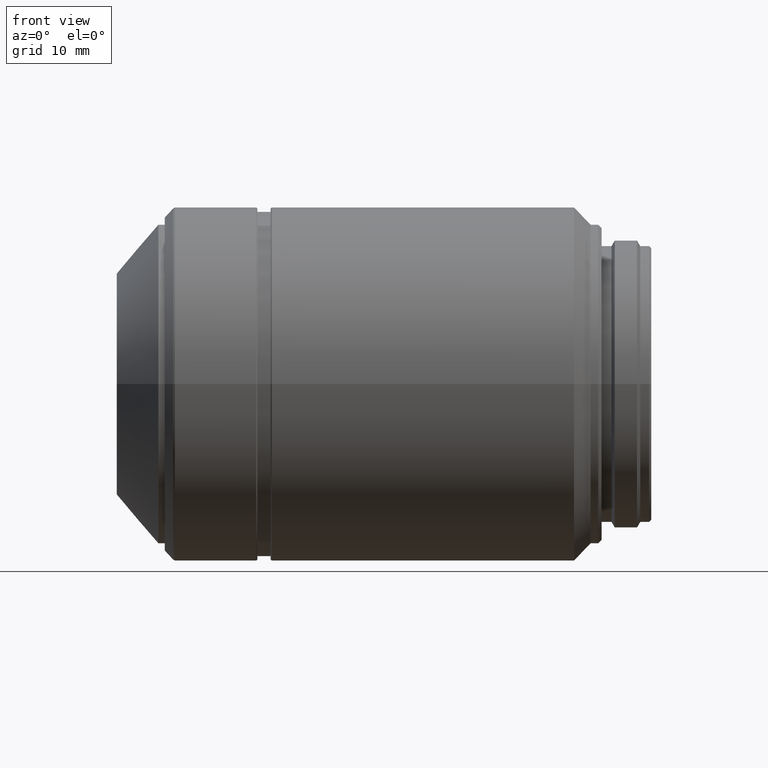
[diagram: clean part render]
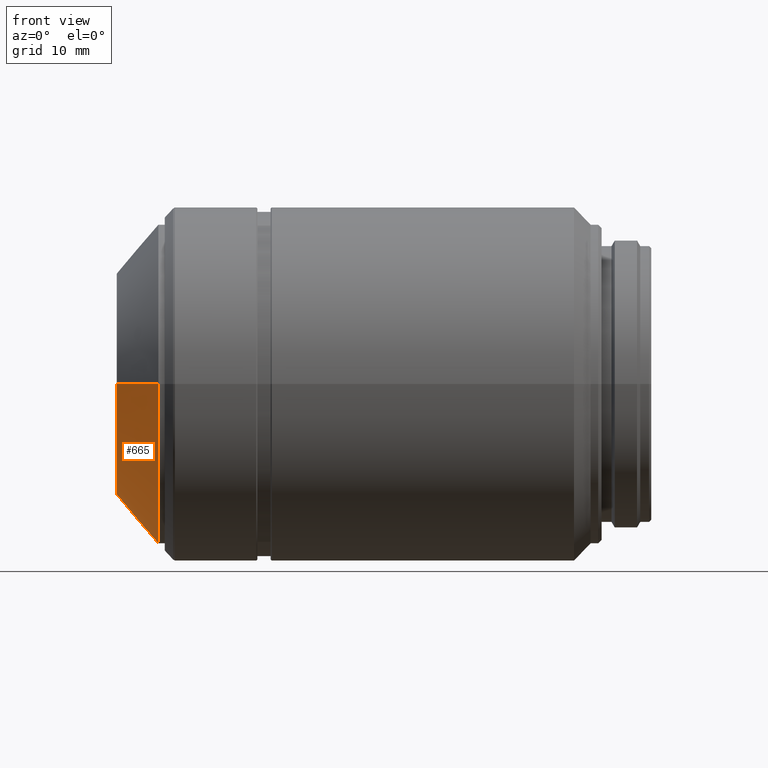
[diagram: same view with one face highlighted and labeled with its STEP entity id]
A machine part, front view. The second image highlights one B-rep face of the part: STEP entity #665.
In plain terms, the highlighted conical surface has half-angle 50 deg.
Its self-contained STEP definition (entity closure, byte-faithful):
#10 = VERTEX_POINT ( 'NONE', #279 ) ;
#17 = EDGE_CURVE ( 'NONE', #566, #10, #384, .T. ) ;
#68 = DIRECTION ( 'NONE',  ( 0.000000000000000000, -1.224646799147350002E-16, -1.000000000000000000 ) ) ;
#151 = CARTESIAN_POINT ( 'NONE',  ( 4.724720340297760224, 0.000000000000000000, 0.000000000000000000 ) ) ;
#153 = ORIENTED_EDGE ( 'NONE', *, *, #881, .T. ) ;
#168 = VERTEX_POINT ( 'NONE', #855 ) ;
#177 = DIRECTION ( 'NONE',  ( 0.6427876096865390299, 1.876267750540550101E-16, 0.7660444431189782355 ) ) ;
#181 = DIRECTION ( 'NONE',  ( 1.000000000000000000, 0.000000000000000000, 0.000000000000000000 ) ) ;
#208 = CIRCLE ( 'NONE', #1002, 14.50000000000000000 ) ;
#211 = AXIS2_PLACEMENT_3D ( 'NONE', #727, #635, #313 ) ;
#221 = EDGE_CURVE ( 'NONE', #168, #403, #315, .T. ) ;
#279 = CARTESIAN_POINT ( 'NONE',  ( 4.724720340297760224, 3.551475717527319691E-15, 14.50000000000000000 ) ) ;
#313 = DIRECTION ( 'NONE',  ( 0.000000000000000000, 1.224646799147350002E-16, 1.000000000000000000 ) ) ;
#315 = LINE ( 'NONE', #320, #1261 ) ;
#320 = CARTESIAN_POINT ( 'NONE',  ( 4.724720340297760224, -1.775737858763660240E-15, -14.50000000000000000 ) ) ;
#384 = LINE ( 'NONE', #608, #688 ) ;
#403 = VERTEX_POINT ( 'NONE', #1194 ) ;
#566 = VERTEX_POINT ( 'NONE', #1184 ) ;
#569 = ORIENTED_EDGE ( 'NONE', *, *, #17, .T. ) ;
#608 = CARTESIAN_POINT ( 'NONE',  ( 4.724720340297760224, 3.551475717527319691E-15, 14.50000000000000000 ) ) ;
#635 = DIRECTION ( 'NONE',  ( 1.000000000000000000, 0.000000000000000000, 0.000000000000000000 ) ) ;
#643 = DIRECTION ( 'NONE',  ( 0.000000000000000000, 1.224646799147350002E-16, 1.000000000000000000 ) ) ;
#653 = DIRECTION ( 'NONE',  ( 0.6427876096865390299, -9.381338752702730781E-17, -0.7660444431189782355 ) ) ;
#665 = ADVANCED_FACE ( 'NONE', ( #804 ), #848, .T. ) ;
#688 = VECTOR ( 'NONE', #177, 1000.000000000000114 ) ;
#727 = CARTESIAN_POINT ( 'NONE',  ( 0.9487719999999999487, 0.000000000000000000, 0.000000000000000000 ) ) ;
#758 = CIRCLE ( 'NONE', #211, 10.00000000000000000 ) ;
#761 = EDGE_CURVE ( 'NONE', #403, #10, #208, .T. ) ;
#804 = FACE_OUTER_BOUND ( 'NONE', #920, .T. ) ;
#848 = CONICAL_SURFACE ( 'NONE', #1026, 14.50000000000000000, 0.8726646259971649888 ) ;
#855 = CARTESIAN_POINT ( 'NONE',  ( 0.9487719999999999487, -1.224646799147349904E-15, -10.00000000000000000 ) ) ;
#881 = EDGE_CURVE ( 'NONE', #168, #566, #758, .T. ) ;
#920 = EDGE_LOOP ( 'NONE', ( #153, #569, #1093, #1370 ) ) ;
#1002 = AXIS2_PLACEMENT_3D ( 'NONE', #151, #181, #643 ) ;
#1026 = AXIS2_PLACEMENT_3D ( 'NONE', #1238, #1139, #68 ) ;
#1093 = ORIENTED_EDGE ( 'NONE', *, *, #761, .F. ) ;
#1139 = DIRECTION ( 'NONE',  ( 1.000000000000000000, 0.000000000000000000, 0.000000000000000000 ) ) ;
#1184 = CARTESIAN_POINT ( 'NONE',  ( 0.9487719999999999487, 2.449293598294709668E-15, 10.00000000000000000 ) ) ;
#1194 = CARTESIAN_POINT ( 'NONE',  ( 4.724720340297760224, -1.775737858763660240E-15, -14.50000000000000000 ) ) ;
#1238 = CARTESIAN_POINT ( 'NONE',  ( 4.724720340297760224, 0.000000000000000000, 0.000000000000000000 ) ) ;
#1261 = VECTOR ( 'NONE', #653, 1000.000000000000114 ) ;
#1370 = ORIENTED_EDGE ( 'NONE', *, *, #221, .F. ) ;